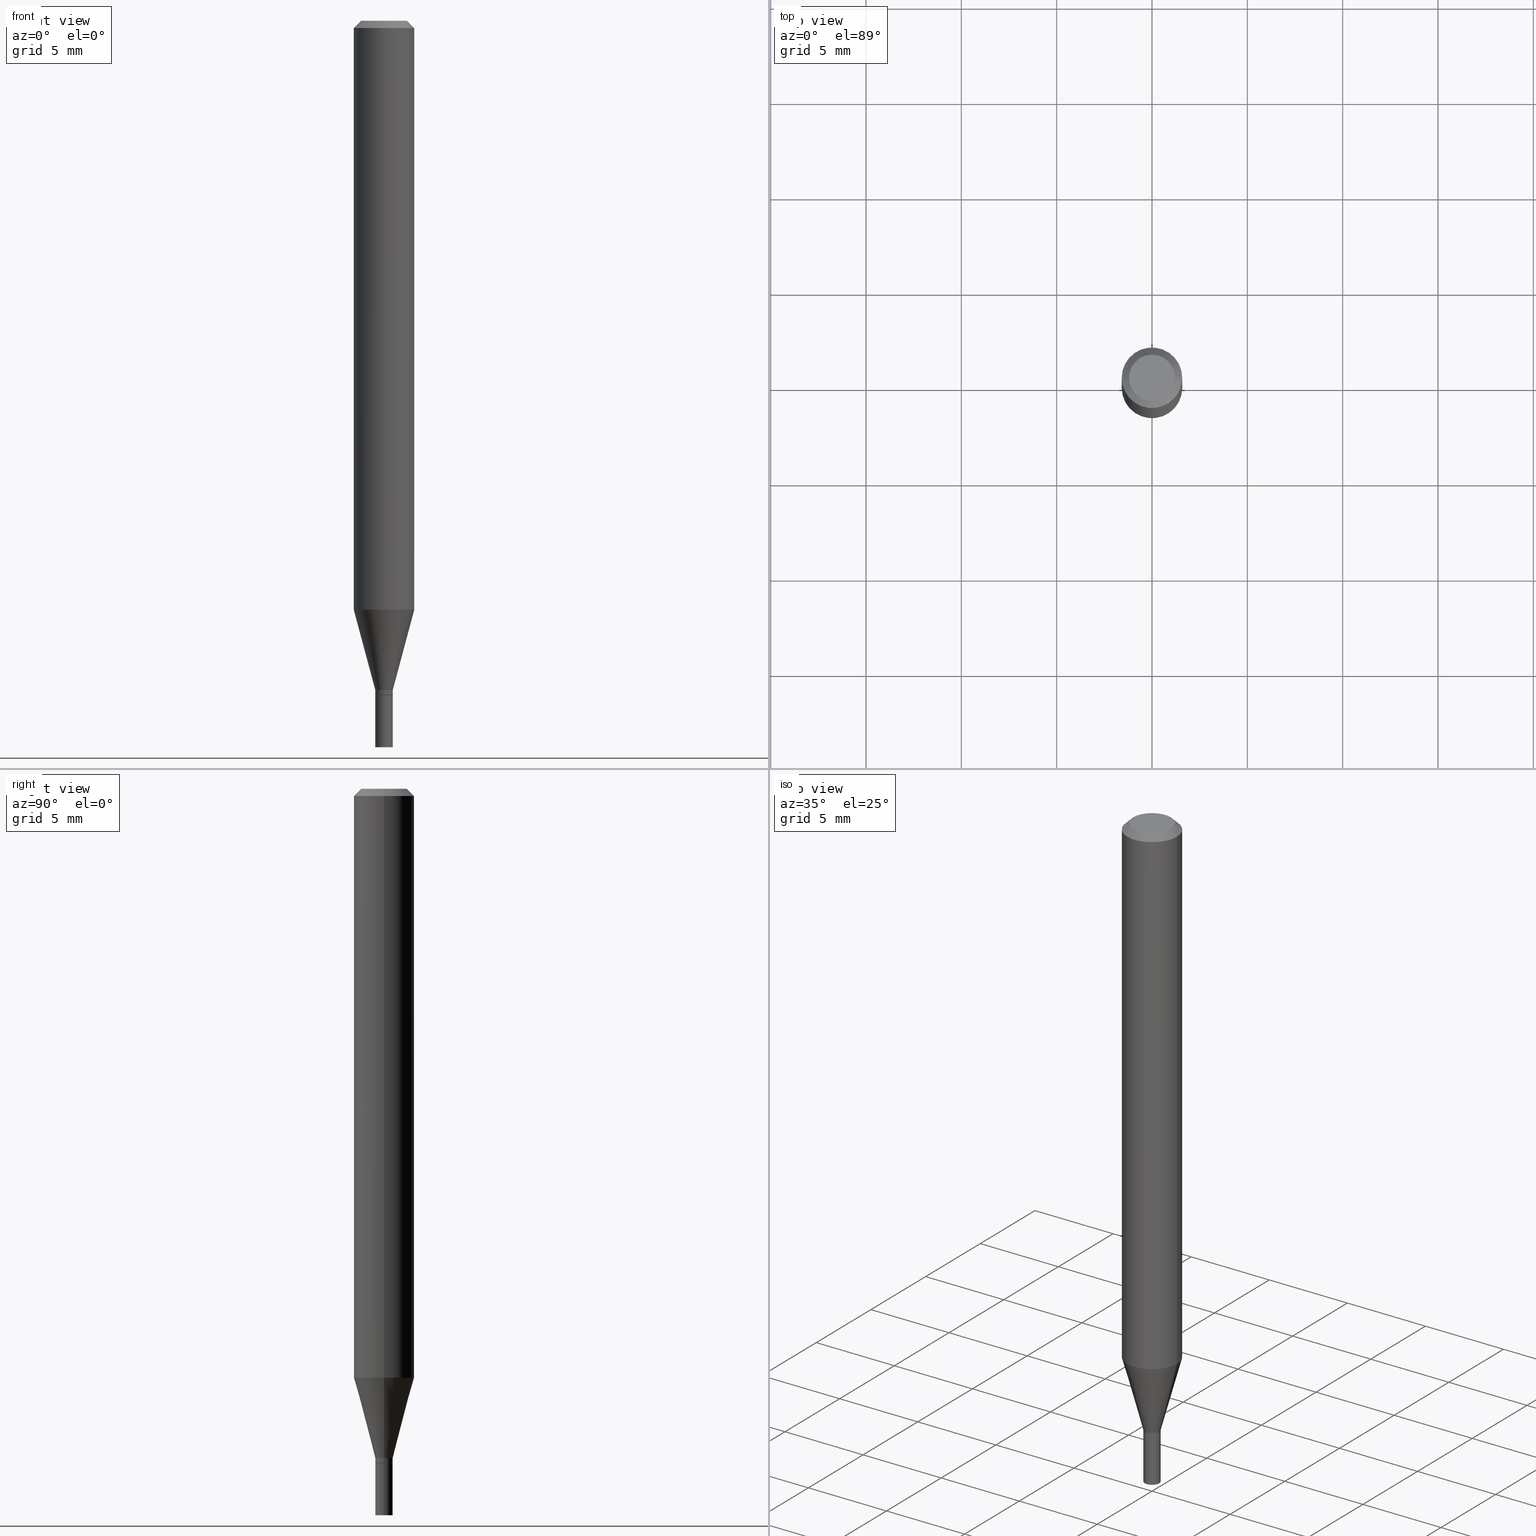
[diagram: canonical four-view strip — front | top / right | iso, engineering-drawing reading convention]
A machine part, canonical four-view strip (front | top / right | iso — engineering-drawing reading convention). The complete STEP part file that produces these views, byte-faithful:
ISO-10303-21;
HEADER;
FILE_DESCRIPTION (( 'STEP AP203' ),
    '1' );
FILE_NAME ('00545.STEP',
    '2024-03-19T21:37:30',
    ( '' ),
    ( '' ),
    'SwSTEP 2.0',
    'SolidWorks 2023',
    '' );
FILE_SCHEMA (( 'CONFIG_CONTROL_DESIGN' ));
ENDSEC;

DATA;
#1 = PRODUCT ( '00545', '00545', '', ( #197 ) ) ;
#2 = ORIENTED_EDGE ( 'NONE', *, *, #146, .T. ) ;
#3 = DIRECTION ( 'NONE',  ( -2.445468806185136597E-29, 3.491481338843145583E-15, 1.000000000000000000 ) ) ;
#4 = ORIENTED_EDGE ( 'NONE', *, *, #304, .F. ) ;
#5 = CARTESIAN_POINT ( 'NONE',  ( 3.668203209277705088E-31, -5.237222008264718399E-17, -0.01499999999999999944 ) ) ;
#6 = ORIENTED_EDGE ( 'NONE', *, *, #382, .T. ) ;
#7 = CARTESIAN_POINT ( 'NONE',  ( -0.06250000000000001388, -3.801285834545430586E-15, -1.215923739063185183 ) ) ;
#8 = EDGE_CURVE ( 'NONE', #48, #260, #223, .T. ) ;
#9 = EDGE_LOOP ( 'NONE', ( #79, #410, #4, #213 ) ) ;
#10 = DIRECTION ( 'NONE',  ( 1.000000000000000000, -6.982962677686250144E-15, 0.000000000000000000 ) ) ;
#11 = VERTEX_POINT ( 'NONE', #122 ) ;
#12 = DATE_AND_TIME ( #279, #20 ) ;
#13 = CIRCLE ( 'NONE', #464, 0.06250000000000000000 ) ;
#14 = ORIENTED_EDGE ( 'NONE', *, *, #37, .F. ) ;
#15 = ADVANCED_FACE ( 'NONE', ( #408 ), #354, .T. ) ;
#16 = DIRECTION ( 'NONE',  ( -2.445468806185136597E-29, 3.491481338843145583E-15, 1.000000000000000000 ) ) ;
#17 = DIRECTION ( 'NONE',  ( -2.445468806185136597E-29, 3.491481338843145583E-15, 1.000000000000000000 ) ) ;
#18 = CALENDAR_DATE ( 2024, 19, 3 ) ;
#19 = EDGE_CURVE ( 'NONE', #185, #69, #414, .T. ) ;
#20 = LOCAL_TIME ( 17, 37, 30.00000000000000000, #347 ) ;
#21 = DIRECTION ( 'NONE',  ( 1.000000000000000000, -6.982962677686250144E-15, 0.000000000000000000 ) ) ;
#22 = AXIS2_PLACEMENT_3D ( 'NONE', #340, #16, #246 ) ;
#23 = AXIS2_PLACEMENT_3D ( 'NONE', #82, #377, #265 ) ;
#24 = AXIS2_PLACEMENT_3D ( 'NONE', #321, #3, #428 ) ;
#25 = PERSON_AND_ORGANIZATION ( #252, #50 ) ;
#26 = DIRECTION ( 'NONE',  ( 1.000000000000000000, -6.982962677686265922E-15, 4.876176775795935793E-29 ) ) ;
#27 = DIRECTION ( 'NONE',  ( -2.438088387897960049E-29, 3.491481338843145188E-15, 1.000000000000000000 ) ) ;
#28 = PERSON_AND_ORGANIZATION ( #252, #50 ) ;
#29 = DIRECTION ( 'NONE',  ( 2.445468806185136597E-29, -3.491481338843145583E-15, -1.000000000000000000 ) ) ;
#30 = APPROVAL_PERSON_ORGANIZATION ( #204, #71, #64 ) ;
#31 = VECTOR ( 'NONE', #277, 39.37007874015748143 ) ;
#32 = CARTESIAN_POINT ( 'NONE',  ( 0.06250000000000000000, -4.811533449433679005E-16, -0.01499999999999999944 ) ) ;
#33 = EDGE_CURVE ( 'NONE', #404, #441, #369, .T. ) ;
#34 = ORIENTED_EDGE ( 'NONE', *, *, #365, .T. ) ;
#35 = CIRCLE ( 'NONE', #249, 0.06250000000000000000 ) ;
#36 = DIRECTION ( 'NONE',  ( 1.000000000000000000, -6.982962677686250144E-15, 0.000000000000000000 ) ) ;
#37 = EDGE_CURVE ( 'NONE', #326, #364, #225, .T. ) ;
#38 = EDGE_LOOP ( 'NONE', ( #255, #113, #34, #400 ) ) ;
#39 = CYLINDRICAL_SURFACE ( 'NONE', #193, 0.06250000000000000000 ) ;
#40 = ORIENTED_EDGE ( 'NONE', *, *, #358, .T. ) ;
#41 = APPROVAL ( #134, 'UNSPECIFIED' ) ;
#42 = CARTESIAN_POINT ( 'NONE',  ( 3.404092578209710223E-29, -4.860142023669658418E-15, -1.392000000000000126 ) ) ;
#43 = CIRCLE ( 'NONE', #106, 0.01799999999999991884 ) ;
#44 = ORIENTED_EDGE ( 'NONE', *, *, #210, .F. ) ;
#45 = DIRECTION ( 'NONE',  ( 1.000000000000000000, -6.982962677686279332E-15, 0.000000000000000000 ) ) ;
#46 = ORIENTED_EDGE ( 'NONE', *, *, #447, .F. ) ;
#47 = EDGE_CURVE ( 'NONE', #437, #48, #43, .T. ) ;
#48 = VERTEX_POINT ( 'NONE', #118 ) ;
#49 = FACE_OUTER_BOUND ( 'NONE', #328, .T. ) ;
#50 = ORGANIZATION ( 'UNSPECIFIED', 'UNSPECIFIED', '' ) ;
#51 = AXIS2_PLACEMENT_3D ( 'NONE', #264, #217, #366 ) ;
#52 = CARTESIAN_POINT ( 'NONE',  ( 1.278896122067429216E-44, -1.825924719719875646E-30, -5.229656247639779395E-16 ) ) ;
#53 = DIRECTION ( 'NONE',  ( 1.000000000000000000, -6.982962677686256455E-15, 0.000000000000000000 ) ) ;
#54 = ORIENTED_EDGE ( 'NONE', *, *, #37, .T. ) ;
#55 = COORDINATED_UNIVERSAL_TIME_OFFSET ( 5, 0, .BEHIND. ) ;
#56 = DIRECTION ( 'NONE',  ( -2.445468806185136597E-29, 3.491481338843145583E-15, 1.000000000000000000 ) ) ;
#57 = CARTESIAN_POINT ( 'NONE',  ( 3.402869843806617422E-29, -4.858396283000238492E-15, -1.391500000000000181 ) ) ;
#58 = CIRCLE ( 'NONE', #258, 0.01799999999999999864 ) ;
#59 = CALENDAR_DATE ( 2024, 19, 3 ) ;
#60 = CARTESIAN_POINT ( 'NONE',  ( 0.000000000000000000, 0.000000000000000000, 0.000000000000000000 ) ) ;
#61 = DATE_TIME_ROLE ( 'classification_date' ) ;
#62 = ADVANCED_FACE ( 'NONE', ( #90 ), #191, .F. ) ;
#63 = DIRECTION ( 'NONE',  ( -1.000000000000000000, 6.982962677686265922E-15, -4.876176775795935793E-29 ) ) ;
#64 = APPROVAL_ROLE ( '' ) ;
#65 = DIRECTION ( 'NONE',  ( -1.000000000000000000, 6.982962677686266711E-15, 0.000000000000000000 ) ) ;
#66 = AXIS2_PLACEMENT_3D ( 'NONE', #87, #162, #381 ) ;
#67 =( GEOMETRIC_REPRESENTATION_CONTEXT ( 3 ) GLOBAL_UNCERTAINTY_ASSIGNED_CONTEXT ( ( #457 ) ) GLOBAL_UNIT_ASSIGNED_CONTEXT ( ( #412, #339, #227 ) ) REPRESENTATION_CONTEXT ( 'NONE', 'WORKASPACE' ) );
#68 = PERSON_AND_ORGANIZATION ( #252, #50 ) ;
#69 = VERTEX_POINT ( 'NONE', #337 ) ;
#70 = EDGE_CURVE ( 'NONE', #364, #69, #143, .T. ) ;
#71 = APPROVAL ( #386, 'UNSPECIFIED' ) ;
#72 = EDGE_LOOP ( 'NONE', ( #367, #375, #216, #431 ) ) ;
#73 = LOCAL_TIME ( 17, 37, 30.00000000000000000, #55 ) ;
#74 = DIRECTION ( 'NONE',  ( -2.445468806185136597E-29, 3.491481338843145583E-15, 1.000000000000000000 ) ) ;
#75 = EDGE_LOOP ( 'NONE', ( #439, #301, #155, #370 ) ) ;
#76 = FACE_OUTER_BOUND ( 'NONE', #303, .T. ) ;
#77 = VERTEX_POINT ( 'NONE', #310 ) ;
#78 = CARTESIAN_POINT ( 'NONE',  ( -0.01799999999999999864, -4.920784323530369756E-15, -1.500000000000000222 ) ) ;
#79 = ORIENTED_EDGE ( 'NONE', *, *, #226, .T. ) ;
#80 = DIRECTION ( 'NONE',  ( 1.000000000000000000, -6.982962677686266711E-15, 0.000000000000000000 ) ) ;
#81 = VECTOR ( 'NONE', #393, 39.37007874015748143 ) ;
#82 = CARTESIAN_POINT ( 'NONE',  ( 1.256933281983868125E-16, 0.01799999999999513794, -1.392000000000000126 ) ) ;
#83 = CARTESIAN_POINT ( 'NONE',  ( 0.000000000000000000, 0.000000000000000000, 0.000000000000000000 ) ) ;
#84 = ADVANCED_FACE ( 'NONE', ( #451 ), #131, .F. ) ;
#85 = DIRECTION ( 'NONE',  ( 0.7071067811865642261, -2.468850131082431399E-15, 0.7071067811865309194 ) ) ;
#86 = DIRECTION ( 'NONE',  ( 1.000000000000000000, -6.982962677686265922E-15, 4.876176775795935793E-29 ) ) ;
#87 = CARTESIAN_POINT ( 'NONE',  ( 3.379637890147859239E-29, -4.825227210281227557E-15, -1.382000000000000117 ) ) ;
#88 = LOCAL_TIME ( 17, 37, 30.00000000000000000, #139 ) ;
#89 = AXIS2_PLACEMENT_3D ( 'NONE', #158, #123, #86 ) ;
#90 = FACE_OUTER_BOUND ( 'NONE', #164, .T. ) ;
#91 = PERSON_AND_ORGANIZATION ( #252, #50 ) ;
#92 = CARTESIAN_POINT ( 'NONE',  ( -0.06250000000000000000, 4.440892098500626162E-16, -3.074334431409316114E-30 ) ) ;
#93 = ADVANCED_FACE ( 'NONE', ( #244 ), #346, .T. ) ;
#94 = CYLINDRICAL_SURFACE ( 'NONE', #232, 0.01799999999999999864 ) ;
#95 = APPROVAL_ROLE ( '' ) ;
#96 = APPLICATION_CONTEXT ( 'configuration controlled 3d designs of mechanical parts and assemblies' ) ;
#97 = DIRECTION ( 'NONE',  ( 2.438088387897960049E-29, -3.491481338843145188E-15, -1.000000000000000000 ) ) ;
#98 = AXIS2_PLACEMENT_3D ( 'NONE', #372, #237, #53 ) ;
#99 = PERSON_AND_ORGANIZATION_ROLE ( 'creator' ) ;
#100 = ADVANCED_FACE ( 'NONE', ( #101 ), #120, .T. ) ;
#101 = FACE_OUTER_BOUND ( 'NONE', #75, .T. ) ;
#102 = DATE_AND_TIME ( #389, #360 ) ;
#103 = DIRECTION ( 'NONE',  ( -2.445468806185136877E-29, 3.491481338843145188E-15, 1.000000000000000000 ) ) ;
#104 = CARTESIAN_POINT ( 'NONE',  ( -0.06250000000000000000, -1.704784422389007524E-15, -0.01499999999999999944 ) ) ;
#105 = EDGE_LOOP ( 'NONE', ( #432, #196, #434, #262 ) ) ;
#106 = AXIS2_PLACEMENT_3D ( 'NONE', #342, #17, #449 ) ;
#107 = ORIENTED_EDGE ( 'NONE', *, *, #226, .F. ) ;
#108 = ORIENTED_EDGE ( 'NONE', *, *, #8, .T. ) ;
#109 = EDGE_LOOP ( 'NONE', ( #402, #157, #361, #331 ) ) ;
#110 = CIRCLE ( 'NONE', #430, 0.01749999999999999820 ) ;
#111 = DIRECTION ( 'NONE',  ( 1.000000000000000000, -6.982962677686265922E-15, 4.876176775795935232E-29 ) ) ;
#112 = ADVANCED_FACE ( 'NONE', ( #137 ), #171, .F. ) ;
#113 = ORIENTED_EDGE ( 'NONE', *, *, #181, .T. ) ;
#114 = CARTESIAN_POINT ( 'NONE',  ( 3.668203209277705088E-31, -5.237222008264718399E-17, -0.01499999999999999944 ) ) ;
#115 = DIRECTION ( 'NONE',  ( -0.2588190451025211836, 5.211531920934547886E-15, 0.9659258262890679791 ) ) ;
#116 = DESIGN_CONTEXT ( 'detailed design', #190, 'design' ) ;
#117 = DIRECTION ( 'NONE',  ( -2.445468806185136877E-29, 3.491481338843145188E-15, 1.000000000000000000 ) ) ;
#118 = CARTESIAN_POINT ( 'NONE',  ( -0.01799999999999991884, -4.249307676194920787E-15, -1.382000000000000117 ) ) ;
#119 = PRODUCT_DEFINITION_SHAPE ( 'NONE', 'NONE',  #247 ) ;
#120 = CONICAL_SURFACE ( 'NONE', #178, 0.01799999999999991884, 0.2617993877991499074 ) ;
#121 = DIRECTION ( 'NONE',  ( -2.445468806185136597E-29, 3.491481338843145583E-15, 1.000000000000000000 ) ) ;
#122 = CARTESIAN_POINT ( 'NONE',  ( 0.06250000000000001388, -4.681810211750884871E-15, -1.215923739063185183 ) ) ;
#123 = DIRECTION ( 'NONE',  ( -2.438088387897960049E-29, 3.491481338843145188E-15, 1.000000000000000000 ) ) ;
#124 = VERTEX_POINT ( 'NONE', #241 ) ;
#125 = DIRECTION ( 'NONE',  ( 2.445468806185136597E-29, -3.491481338843145583E-15, -1.000000000000000000 ) ) ;
#126 = ORIENTED_EDGE ( 'NONE', *, *, #195, .T. ) ;
#127 = LOCAL_TIME ( 17, 37, 30.00000000000000000, #239 ) ;
#128 = VECTOR ( 'NONE', #85, 39.37007874015748143 ) ;
#129 = APPROVAL ( #453, 'UNSPECIFIED' ) ;
#130 = AXIS2_PLACEMENT_3D ( 'NONE', #383, #161, #336 ) ;
#131 = PLANE ( 'NONE',  #287 ) ;
#132 = CARTESIAN_POINT ( 'NONE',  ( 3.668203209277705088E-31, -5.237222008264718399E-17, -0.01499999999999999944 ) ) ;
#133 = CARTESIAN_POINT ( 'NONE',  ( 0.01799999999999991884, -4.950920538479579759E-15, -1.382000000000000117 ) ) ;
#134 = APPROVAL_STATUS ( 'not_yet_approved' ) ;
#135 = DIRECTION ( 'NONE',  ( -2.445468806185136597E-29, 3.491481338843145583E-15, 1.000000000000000000 ) ) ;
#136 = EDGE_CURVE ( 'NONE', #260, #295, #458, .T. ) ;
#137 = FACE_OUTER_BOUND ( 'NONE', #177, .T. ) ;
#138 = VECTOR ( 'NONE', #208, 39.37007874015748143 ) ;
#139 = COORDINATED_UNIVERSAL_TIME_OFFSET ( 5, 0, .BEHIND. ) ;
#140 = CARTESIAN_POINT ( 'NONE',  ( 3.576687321579069994E-29, -5.368277968210015545E-15, -1.500000000000000222 ) ) ;
#141 = DIRECTION ( 'NONE',  ( -2.445468806185136597E-29, 3.491481338843145583E-15, 1.000000000000000000 ) ) ;
#142 = EDGE_CURVE ( 'NONE', #257, #77, #283, .T. ) ;
#143 = CIRCLE ( 'NONE', #22, 0.01799999999999992231 ) ;
#144 = AXIS2_PLACEMENT_3D ( 'NONE', #435, #267, #111 ) ;
#145 = ORIENTED_EDGE ( 'NONE', *, *, #200, .F. ) ;
#146 = EDGE_CURVE ( 'NONE', #257, #462, #289, .T. ) ;
#147 = ORIENTED_EDGE ( 'NONE', *, *, #47, .F. ) ;
#148 = ADVANCED_FACE ( 'NONE', ( #276 ), #94, .T. ) ;
#149 = CARTESIAN_POINT ( 'NONE',  ( 3.404092578209710223E-29, -4.860142023669658418E-15, -1.392000000000000126 ) ) ;
#150 = EDGE_LOOP ( 'NONE', ( #107, #292 ) ) ;
#151 = CYLINDRICAL_SURFACE ( 'NONE', #209, 0.01799999999999999864 ) ;
#152 = CC_DESIGN_DATE_AND_TIME_ASSIGNMENT ( #102, #61, ( #323 ) ) ;
#153 = ORIENTED_EDGE ( 'NONE', *, *, #290, .T. ) ;
#154 = CARTESIAN_POINT ( 'NONE',  ( -0.06250000000000000000, 3.840629472727444916E-16, -0.01499999999999999944 ) ) ;
#155 = ORIENTED_EDGE ( 'NONE', *, *, #243, .T. ) ;
#156 = FACE_OUTER_BOUND ( 'NONE', #72, .T. ) ;
#157 = ORIENTED_EDGE ( 'NONE', *, *, #195, .F. ) ;
#158 = CARTESIAN_POINT ( 'NONE',  ( 3.404092578209710223E-29, -4.860142023669658418E-15, -1.392000000000000126 ) ) ;
#159 = AXIS2_PLACEMENT_3D ( 'NONE', #456, #135, #21 ) ;
#160 = EDGE_LOOP ( 'NONE', ( #14, #194, #251, #446 ) ) ;
#161 = DIRECTION ( 'NONE',  ( 0.000000000000000000, 0.000000000000000000, 1.000000000000000000 ) ) ;
#162 = DIRECTION ( 'NONE',  ( -2.445468806185136597E-29, 3.491481338843145583E-15, 1.000000000000000000 ) ) ;
#163 = CC_DESIGN_PERSON_AND_ORGANIZATION_ASSIGNMENT ( #91, #421, ( #247 ) ) ;
#164 = EDGE_LOOP ( 'NONE', ( #268, #6 ) ) ;
#165 = DATE_TIME_ROLE ( 'creation_date' ) ;
#166 = PRODUCT_DEFINITION_FORMATION_WITH_SPECIFIED_SOURCE ( 'ANY', '', #1, .NOT_KNOWN. ) ;
#167 = VECTOR ( 'NONE', #390, 39.37007874015748143 ) ;
#168 = LINE ( 'NONE', #280, #214 ) ;
#169 = CARTESIAN_POINT ( 'NONE',  ( -0.04749999999999999362, 3.578768372314202124E-16, -5.229656247639803061E-16 ) ) ;
#170 = DIRECTION ( 'NONE',  ( 1.000000000000000000, -6.982962677686267499E-15, 4.852736867747366768E-29 ) ) ;
#171 = PLANE ( 'NONE',  #324 ) ;
#172 = DATE_AND_TIME ( #59, #88 ) ;
#173 = LINE ( 'NONE', #319, #138 ) ;
#174 = APPROVAL_DATE_TIME ( #172, #71 ) ;
#175 = CYLINDRICAL_SURFACE ( 'NONE', #24, 0.06250000000000000000 ) ;
#176 = CC_DESIGN_PERSON_AND_ORGANIZATION_ASSIGNMENT ( #28, #426, ( #323 ) ) ;
#177 = EDGE_LOOP ( 'NONE', ( #126, #291 ) ) ;
#178 = AXIS2_PLACEMENT_3D ( 'NONE', #315, #349, #203 ) ;
#179 = AXIS2_PLACEMENT_3D ( 'NONE', #114, #261, #80 ) ;
#180 = ORIENTED_EDGE ( 'NONE', *, *, #387, .F. ) ;
#181 = EDGE_CURVE ( 'NONE', #404, #124, #205, .T. ) ;
#182 = CARTESIAN_POINT ( 'NONE',  ( -0.01749999999999999820, -4.733147817737530757E-15, -1.392000000000000126 ) ) ;
#183 = ORIENTED_EDGE ( 'NONE', *, *, #136, .F. ) ;
#184 = CARTESIAN_POINT ( 'NONE',  ( 0.01799999999999999864, -4.985835351868011408E-15, -1.392000000000000126 ) ) ;
#185 = VERTEX_POINT ( 'NONE', #388 ) ;
#186 = CARTESIAN_POINT ( 'NONE',  ( -0.01799999999999991884, 1.278976924368174568E-16, -8.854083162458790652E-31 ) ) ;
#187 = ORIENTED_EDGE ( 'NONE', *, *, #47, .T. ) ;
#188 = DIRECTION ( 'NONE',  ( -2.445468806185136597E-29, 3.491481338843145583E-15, 1.000000000000000000 ) ) ;
#189 = DIRECTION ( 'NONE',  ( -2.445468806185136597E-29, 3.491481338843145583E-15, 1.000000000000000000 ) ) ;
#190 = APPLICATION_CONTEXT ( 'configuration controlled 3d designs of mechanical parts and assemblies' ) ;
#191 = PLANE ( 'NONE',  #23 ) ;
#192 =( LENGTH_UNIT ( ) NAMED_UNIT ( * ) SI_UNIT ( $, .METRE. ) );
#193 = AXIS2_PLACEMENT_3D ( 'NONE', #83, #300, #302 ) ;
#194 = ORIENTED_EDGE ( 'NONE', *, *, #398, .T. ) ;
#195 = EDGE_CURVE ( 'NONE', #441, #404, #415, .T. ) ;
#196 = ORIENTED_EDGE ( 'NONE', *, *, #136, .T. ) ;
#197 = MECHANICAL_CONTEXT ( 'NONE', #96, 'mechanical' ) ;
#198 = DIRECTION ( 'NONE',  ( -2.445468806185136597E-29, 3.491481338843145583E-15, 1.000000000000000000 ) ) ;
#199 = DATE_AND_TIME ( #18, #73 ) ;
#200 = EDGE_CURVE ( 'NONE', #185, #326, #110, .T. ) ;
#201 = CIRCLE ( 'NONE', #221, 0.01799999999999992231 ) ;
#202 = CARTESIAN_POINT ( 'NONE',  ( 3.316907271900976096E-16, 0.04749999999999999362, -4.273281759770383169E-16 ) ) ;
#203 = DIRECTION ( 'NONE',  ( 1.000000000000000000, -6.982962677686256455E-15, 0.000000000000000000 ) ) ;
#204 = PERSON_AND_ORGANIZATION ( #252, #50 ) ;
#205 = LINE ( 'NONE', #32, #81 ) ;
#206 = PERSON_AND_ORGANIZATION ( #252, #50 ) ;
#207 = ADVANCED_BREP_SHAPE_REPRESENTATION ( '00545', ( #392, #231, #130 ), #67 ) ;
#208 = DIRECTION ( 'NONE',  ( -2.445468806185136877E-29, 3.491481338843145188E-15, 1.000000000000000000 ) ) ;
#209 = AXIS2_PLACEMENT_3D ( 'NONE', #406, #297, #438 ) ;
#210 = EDGE_CURVE ( 'NONE', #69, #364, #201, .T. ) ;
#211 = ORIENTED_EDGE ( 'NONE', *, *, #19, .F. ) ;
#212 = EDGE_CURVE ( 'NONE', #462, #411, #173, .T. ) ;
#213 = ORIENTED_EDGE ( 'NONE', *, *, #212, .F. ) ;
#214 = VECTOR ( 'NONE', #454, 39.37007874015748143 ) ;
#215 = CARTESIAN_POINT ( 'NONE',  ( 2.973503574579014958E-29, -4.245375044395493202E-15, -1.215923739063185183 ) ) ;
#216 = ORIENTED_EDGE ( 'NONE', *, *, #447, .T. ) ;
#217 = DIRECTION ( 'NONE',  ( -2.445468806185136597E-29, 3.491481338843145583E-15, 1.000000000000000000 ) ) ;
#218 = CARTESIAN_POINT ( 'NONE',  ( -0.01799999999999992231, -4.730498590563419556E-15, -1.391500000000000181 ) ) ;
#219 = EDGE_LOOP ( 'NONE', ( #183, #153, #357, #272 ) ) ;
#220 = VECTOR ( 'NONE', #229, 39.37007874015748143 ) ;
#221 = AXIS2_PLACEMENT_3D ( 'NONE', #57, #351, #422 ) ;
#222 = CARTESIAN_POINT ( 'NONE',  ( 2.973503574579014958E-29, -4.245375044395493202E-15, -1.215923739063185183 ) ) ;
#223 = LINE ( 'NONE', #269, #273 ) ;
#224 = DIRECTION ( 'NONE',  ( -0.7071067811865598962, 2.468850131082386434E-15, -0.7071067811865351382 ) ) ;
#225 = LINE ( 'NONE', #309, #220 ) ;
#226 = EDGE_CURVE ( 'NONE', #462, #257, #407, .T. ) ;
#227 =( NAMED_UNIT ( * ) SI_UNIT ( $, .STERADIAN. ) SOLID_ANGLE_UNIT ( ) );
#228 = ADVANCED_FACE ( 'NONE', ( #348 ), #444, .T. ) ;
#229 = DIRECTION ( 'NONE',  ( -0.7071067811865642261, 7.493145998870414114E-15, 0.7071067811865309194 ) ) ;
#230 = CC_DESIGN_SECURITY_CLASSIFICATION ( #323, ( #166 ) ) ;
#231 = MANIFOLD_SOLID_BREP ( 'Body-Move/Copy2[2]', #294 ) ;
#232 = AXIS2_PLACEMENT_3D ( 'NONE', #60, #417, #235 ) ;
#233 = ORIENTED_EDGE ( 'NONE', *, *, #382, .F. ) ;
#234 = LENGTH_MEASURE_WITH_UNIT ( LENGTH_MEASURE( 0.02539999999999999897 ), #192 );
#235 = DIRECTION ( 'NONE',  ( 1.000000000000000000, -6.982962677686266711E-15, 4.876176775795935232E-29 ) ) ;
#236 = EDGE_CURVE ( 'NONE', #11, #124, #168, .T. ) ;
#237 = DIRECTION ( 'NONE',  ( -2.445468806185136597E-29, 3.491481338843145583E-15, 1.000000000000000000 ) ) ;
#238 = CARTESIAN_POINT ( 'NONE',  ( 3.404092578209710223E-29, -4.860142023669658418E-15, -1.392000000000000126 ) ) ;
#239 = COORDINATED_UNIVERSAL_TIME_OFFSET ( 5, 0, .BEHIND. ) ;
#240 = AXIS2_PLACEMENT_3D ( 'NONE', #334, #461, #10 ) ;
#241 = CARTESIAN_POINT ( 'NONE',  ( 0.06250000000000000000, -4.888073874380388472E-16, -0.01499999999999999944 ) ) ;
#242 = COORDINATED_UNIVERSAL_TIME_OFFSET ( 5, 0, .BEHIND. ) ;
#243 = EDGE_CURVE ( 'NONE', #437, #11, #312, .T. ) ;
#244 = FACE_OUTER_BOUND ( 'NONE', #38, .T. ) ;
#245 = CALENDAR_DATE ( 2024, 19, 3 ) ;
#246 = DIRECTION ( 'NONE',  ( 1.000000000000000000, -6.982962677686255667E-15, 0.000000000000000000 ) ) ;
#247 = PRODUCT_DEFINITION ( 'UNKNOWN', '', #166, #116 ) ;
#248 = DIRECTION ( 'NONE',  ( 1.000000000000000000, -6.982962677686270655E-15, 0.000000000000000000 ) ) ;
#249 = AXIS2_PLACEMENT_3D ( 'NONE', #215, #286, #248 ) ;
#250 = PRODUCT_RELATED_PRODUCT_CATEGORY ( 'detail', '', ( #1 ) ) ;
#251 = ORIENTED_EDGE ( 'NONE', *, *, #19, .T. ) ;
#252 = PERSON ( 'UNSPECIFIED', 'UNSPECIFIED', 'UNSPECIFIED', ('UNSPECIFIED'), ('UNSPECIFIED'), ('UNSPECIFIED') ) ;
#253 = ORIENTED_EDGE ( 'NONE', *, *, #142, .F. ) ;
#254 = ADVANCED_FACE ( 'NONE', ( #156 ), #443, .T. ) ;
#255 = ORIENTED_EDGE ( 'NONE', *, *, #33, .F. ) ;
#256 = APPROVAL_PERSON_ORGANIZATION ( #343, #41, #450 ) ;
#257 = VERTEX_POINT ( 'NONE', #78 ) ;
#258 = AXIS2_PLACEMENT_3D ( 'NONE', #42, #188, #403 ) ;
#259 = CARTESIAN_POINT ( 'NONE',  ( 3.404092578209710223E-29, -4.860142023669658418E-15, -1.392000000000000126 ) ) ;
#260 = VERTEX_POINT ( 'NONE', #7 ) ;
#261 = DIRECTION ( 'NONE',  ( -2.445468806185136597E-29, 3.491481338843145583E-15, 1.000000000000000000 ) ) ;
#262 = ORIENTED_EDGE ( 'NONE', *, *, #236, .F. ) ;
#263 = CC_DESIGN_PERSON_AND_ORGANIZATION_ASSIGNMENT ( #206, #350, ( #166 ) ) ;
#264 = CARTESIAN_POINT ( 'NONE',  ( 0.000000000000000000, 0.000000000000000000, 0.000000000000000000 ) ) ;
#265 = DIRECTION ( 'NONE',  ( -1.000000000000000000, 6.982962677686265922E-15, -4.876176775795935793E-29 ) ) ;
#266 = AXIS2_PLACEMENT_3D ( 'NONE', #427, #384, #170 ) ;
#267 = DIRECTION ( 'NONE',  ( -2.445468806185136597E-29, 3.491481338843145583E-15, 1.000000000000000000 ) ) ;
#268 = ORIENTED_EDGE ( 'NONE', *, *, #304, .T. ) ;
#269 = CARTESIAN_POINT ( 'NONE',  ( -0.01799999999999991884, -4.697329517844410199E-15, -1.382000000000000117 ) ) ;
#270 = DIMENSIONAL_EXPONENTS ( 1.000000000000000000, 0.000000000000000000, 0.000000000000000000, 0.000000000000000000, 0.000000000000000000, 0.000000000000000000, 0.000000000000000000 ) ;
#271 = APPLICATION_PROTOCOL_DEFINITION ( 'international standard', 'config_control_design', 1994, #190 ) ;
#272 = ORIENTED_EDGE ( 'NONE', *, *, #429, .F. ) ;
#273 = VECTOR ( 'NONE', #115, 39.37007874015748854 ) ;
#274 = APPROVAL_DATE_TIME ( #12, #41 ) ;
#275 = CIRCLE ( 'NONE', #325, 0.01749999999999999820 ) ;
#276 = FACE_OUTER_BOUND ( 'NONE', #9, .T. ) ;
#277 = DIRECTION ( 'NONE',  ( -2.445468806185136877E-29, 3.491481338843145188E-15, 1.000000000000000000 ) ) ;
#278 = DIRECTION ( 'NONE',  ( -2.445468806185136597E-29, 3.491481338843145583E-15, 1.000000000000000000 ) ) ;
#279 = CALENDAR_DATE ( 2024, 19, 3 ) ;
#280 = CARTESIAN_POINT ( 'NONE',  ( 0.06250000000000000000, -4.364351673553916694E-16, 3.047610484872459871E-30 ) ) ;
#281 = CC_DESIGN_APPROVAL ( #41, ( #247 ) ) ;
#282 = CIRCLE ( 'NONE', #399, 0.01799999999999999864 ) ;
#283 = LINE ( 'NONE', #356, #288 ) ;
#284 = ADVANCED_FACE ( 'NONE', ( #76 ), #394, .T. ) ;
#285 = CARTESIAN_POINT ( 'NONE',  ( 3.668203209277705088E-31, -5.237222008264718399E-17, -0.01499999999999999944 ) ) ;
#286 = DIRECTION ( 'NONE',  ( -2.445468806185136597E-29, 3.491481338843145583E-15, 1.000000000000000000 ) ) ;
#287 = AXIS2_PLACEMENT_3D ( 'NONE', #140, #27, #26 ) ;
#288 = VECTOR ( 'NONE', #103, 39.37007874015748143 ) ;
#289 = CIRCLE ( 'NONE', #305, 0.01799999999999999864 ) ;
#290 = EDGE_CURVE ( 'NONE', #260, #11, #13, .T. ) ;
#291 = ORIENTED_EDGE ( 'NONE', *, *, #33, .T. ) ;
#292 = ORIENTED_EDGE ( 'NONE', *, *, #146, .F. ) ;
#293 = FACE_OUTER_BOUND ( 'NONE', #335, .T. ) ;
#294 = CLOSED_SHELL ( 'NONE', ( #405, #284, #93, #322, #15, #100, #363, #442, #112, #466, #228, #254 ) ) ;
#295 = VERTEX_POINT ( 'NONE', #104 ) ;
#296 = AXIS2_PLACEMENT_3D ( 'NONE', #132, #125, #306 ) ;
#297 = DIRECTION ( 'NONE',  ( -2.445468806185136597E-29, 3.491481338843145583E-15, 1.000000000000000000 ) ) ;
#298 = CC_DESIGN_DATE_AND_TIME_ASSIGNMENT ( #199, #165, ( #247 ) ) ;
#299 = ORIENTED_EDGE ( 'NONE', *, *, #243, .F. ) ;
#300 = DIRECTION ( 'NONE',  ( -2.445468806185136597E-29, 3.491481338843145583E-15, 1.000000000000000000 ) ) ;
#301 = ORIENTED_EDGE ( 'NONE', *, *, #433, .T. ) ;
#302 = DIRECTION ( 'NONE',  ( 1.000000000000000000, -6.982962677686266711E-15, 4.876176775795935793E-29 ) ) ;
#303 = EDGE_LOOP ( 'NONE', ( #307, #54, #44, #211 ) ) ;
#304 = EDGE_CURVE ( 'NONE', #411, #77, #282, .T. ) ;
#305 = AXIS2_PLACEMENT_3D ( 'NONE', #460, #278, #425 ) ;
#306 = DIRECTION ( 'NONE',  ( -1.000000000000000000, 6.982962677686266711E-15, 0.000000000000000000 ) ) ;
#307 = ORIENTED_EDGE ( 'NONE', *, *, #200, .T. ) ;
#308 = CARTESIAN_POINT ( 'NONE',  ( 0.01799999999999991884, -4.950920538479579759E-15, -1.382000000000000117 ) ) ;
#309 = CARTESIAN_POINT ( 'NONE',  ( -0.01749999999999999820, -4.735797044911641169E-15, -1.392000000000000126 ) ) ;
#310 = CARTESIAN_POINT ( 'NONE',  ( -0.01799999999999999864, -4.920784323530369756E-15, -1.392000000000000126 ) ) ;
#311 = CIRCLE ( 'NONE', #98, 0.01799999999999991884 ) ;
#312 = LINE ( 'NONE', #133, #379 ) ;
#313 = FACE_OUTER_BOUND ( 'NONE', #109, .T. ) ;
#314 = CARTESIAN_POINT ( 'NONE',  ( 3.668203209277704895E-29, -5.237222008264718177E-15, -1.500000000000000222 ) ) ;
#315 = CARTESIAN_POINT ( 'NONE',  ( 3.379637890147859239E-29, -4.825227210281227557E-15, -1.382000000000000117 ) ) ;
#316 = EDGE_CURVE ( 'NONE', #441, #295, #395, .T. ) ;
#317 = APPROVAL_PERSON_ORGANIZATION ( #25, #129, #95 ) ;
#318 = CONICAL_SURFACE ( 'NONE', #296, 0.06250000000000000000, 0.7853981633974658205 ) ;
#319 = CARTESIAN_POINT ( 'NONE',  ( 0.01799999999999999864, -1.256933281983527929E-16, 8.777118196432682816E-31 ) ) ;
#320 = SECURITY_CLASSIFICATION_LEVEL ( 'unclassified' ) ;
#321 = CARTESIAN_POINT ( 'NONE',  ( 0.000000000000000000, 0.000000000000000000, 0.000000000000000000 ) ) ;
#322 = ADVANCED_FACE ( 'NONE', ( #409 ), #39, .T. ) ;
#323 = SECURITY_CLASSIFICATION ( '', '', #320 ) ;
#324 = AXIS2_PLACEMENT_3D ( 'NONE', #202, #97, #63 ) ;
#325 = AXIS2_PLACEMENT_3D ( 'NONE', #259, #74, #36 ) ;
#326 = VERTEX_POINT ( 'NONE', #182 ) ;
#327 = CARTESIAN_POINT ( 'NONE',  ( 0.04749999999999999362, -4.035134999187587991E-16, -5.229656247639753758E-16 ) ) ;
#328 = EDGE_LOOP ( 'NONE', ( #145, #396 ) ) ;
#329 = FACE_OUTER_BOUND ( 'NONE', #397, .T. ) ;
#330 = AXIS2_PLACEMENT_3D ( 'NONE', #52, #189, #333 ) ;
#331 = ORIENTED_EDGE ( 'NONE', *, *, #429, .T. ) ;
#332 = DIRECTION ( 'NONE',  ( 1.000000000000000000, -6.982962677686270655E-15, 0.000000000000000000 ) ) ;
#333 = DIRECTION ( 'NONE',  ( 1.000000000000000000, -6.982962677686267499E-15, 4.852736867747366768E-29 ) ) ;
#334 = CARTESIAN_POINT ( 'NONE',  ( 3.404092578209710223E-29, -4.860142023669658418E-15, -1.392000000000000126 ) ) ;
#335 = EDGE_LOOP ( 'NONE', ( #359, #40, #147, #46 ) ) ;
#336 = DIRECTION ( 'NONE',  ( 1.000000000000000000, 0.000000000000000000, 0.000000000000000000 ) ) ;
#337 = CARTESIAN_POINT ( 'NONE',  ( 0.01799999999999992231, -4.984089611198589115E-15, -1.391500000000000181 ) ) ;
#338 = AXIS2_PLACEMENT_3D ( 'NONE', #5, #141, #362 ) ;
#339 =( NAMED_UNIT ( * ) PLANE_ANGLE_UNIT ( ) SI_UNIT ( $, .RADIAN. ) );
#340 = CARTESIAN_POINT ( 'NONE',  ( 3.402869843806617422E-29, -4.858396283000238492E-15, -1.391500000000000181 ) ) ;
#341 = PLANE ( 'NONE',  #89 ) ;
#342 = CARTESIAN_POINT ( 'NONE',  ( 3.379637890147859239E-29, -4.825227210281227557E-15, -1.382000000000000117 ) ) ;
#343 = PERSON_AND_ORGANIZATION ( #252, #50 ) ;
#344 = CC_DESIGN_PERSON_AND_ORGANIZATION_ASSIGNMENT ( #68, #99, ( #166 ) ) ;
#345 = DIRECTION ( 'NONE',  ( 1.000000000000000000, -6.982962677686279332E-15, 0.000000000000000000 ) ) ;
#346 = CONICAL_SURFACE ( 'NONE', #463, 0.06250000000000000000, 0.7853981633974658205 ) ;
#347 = COORDINATED_UNIVERSAL_TIME_OFFSET ( 5, 0, .BEHIND. ) ;
#348 = FACE_OUTER_BOUND ( 'NONE', #160, .T. ) ;
#349 = DIRECTION ( 'NONE',  ( -2.445468806185136597E-29, 3.491481338843145583E-15, 1.000000000000000000 ) ) ;
#350 = PERSON_AND_ORGANIZATION_ROLE ( 'design_supplier' ) ;
#351 = DIRECTION ( 'NONE',  ( -2.445468806185136597E-29, 3.491481338843145583E-15, 1.000000000000000000 ) ) ;
#352 = SHAPE_DEFINITION_REPRESENTATION ( #119, #207 ) ;
#353 = CC_DESIGN_APPROVAL ( #129, ( #166 ) ) ;
#354 = CONICAL_SURFACE ( 'NONE', #66, 0.01799999999999991884, 0.2617993877991499074 ) ;
#355 = VECTOR ( 'NONE', #224, 39.37007874015748143 ) ;
#356 = CARTESIAN_POINT ( 'NONE',  ( -0.01799999999999999864, 1.278976924368180238E-16, -8.854083162458829188E-31 ) ) ;
#357 = ORIENTED_EDGE ( 'NONE', *, *, #236, .T. ) ;
#358 = EDGE_CURVE ( 'NONE', #364, #48, #374, .T. ) ;
#359 = ORIENTED_EDGE ( 'NONE', *, *, #210, .T. ) ;
#360 = LOCAL_TIME ( 17, 37, 30.00000000000000000, #242 ) ;
#361 = ORIENTED_EDGE ( 'NONE', *, *, #316, .T. ) ;
#362 = DIRECTION ( 'NONE',  ( 1.000000000000000000, -6.982962677686266711E-15, 0.000000000000000000 ) ) ;
#363 = ADVANCED_FACE ( 'NONE', ( #440 ), #175, .T. ) ;
#364 = VERTEX_POINT ( 'NONE', #218 ) ;
#365 = EDGE_CURVE ( 'NONE', #124, #295, #452, .T. ) ;
#366 = DIRECTION ( 'NONE',  ( 1.000000000000000000, -6.982962677686265922E-15, 4.876176775795935232E-29 ) ) ;
#367 = ORIENTED_EDGE ( 'NONE', *, *, #358, .F. ) ;
#368 = DIRECTION ( 'NONE',  ( -2.445468806185136597E-29, 3.491481338843145583E-15, 1.000000000000000000 ) ) ;
#369 = CIRCLE ( 'NONE', #330, 0.04749999999999999362 ) ;
#370 = ORIENTED_EDGE ( 'NONE', *, *, #290, .F. ) ;
#371 = AXIS2_PLACEMENT_3D ( 'NONE', #314, #198, #345 ) ;
#372 = CARTESIAN_POINT ( 'NONE',  ( 3.379637890147859239E-29, -4.825227210281227557E-15, -1.382000000000000117 ) ) ;
#373 = CARTESIAN_POINT ( 'NONE',  ( 0.01749999999999999820, -4.982343870529167612E-15, -1.392000000000000126 ) ) ;
#374 = LINE ( 'NONE', #186, #459 ) ;
#375 = ORIENTED_EDGE ( 'NONE', *, *, #70, .T. ) ;
#376 = CARTESIAN_POINT ( 'NONE',  ( 0.01799999999999991884, -1.256933281983522259E-16, 8.777118196432644280E-31 ) ) ;
#377 = DIRECTION ( 'NONE',  ( 2.438088387897960049E-29, -3.491481338843145188E-15, -1.000000000000000000 ) ) ;
#378 = CLOSED_SHELL ( 'NONE', ( #148, #84, #420, #62 ) ) ;
#379 = VECTOR ( 'NONE', #385, 39.37007874015748854 ) ;
#380 = LINE ( 'NONE', #376, #31 ) ;
#381 = DIRECTION ( 'NONE',  ( 1.000000000000000000, -6.982962677686256455E-15, 0.000000000000000000 ) ) ;
#382 = EDGE_CURVE ( 'NONE', #77, #411, #58, .T. ) ;
#383 = CARTESIAN_POINT ( 'NONE',  ( 0.000000000000000000, 0.000000000000000000, 0.000000000000000000 ) ) ;
#384 = DIRECTION ( 'NONE',  ( -2.445468806185136597E-29, 3.491481338843145583E-15, 1.000000000000000000 ) ) ;
#385 = DIRECTION ( 'NONE',  ( 0.2588190451025211836, 1.565188264969622559E-15, 0.9659258262890679791 ) ) ;
#386 = APPROVAL_STATUS ( 'not_yet_approved' ) ;
#387 = EDGE_CURVE ( 'NONE', #11, #260, #35, .T. ) ;
#388 = CARTESIAN_POINT ( 'NONE',  ( 0.01749999999999999820, -4.982343870529167612E-15, -1.392000000000000126 ) ) ;
#389 = CALENDAR_DATE ( 2024, 19, 3 ) ;
#390 = DIRECTION ( 'NONE',  ( -2.445468806185136877E-29, 3.491481338843145188E-15, 1.000000000000000000 ) ) ;
#391 = APPROVAL_DATE_TIME ( #424, #129 ) ;
#392 = MANIFOLD_SOLID_BREP ( 'Body-Move/Copy2[1]', #378 ) ;
#393 = DIRECTION ( 'NONE',  ( 0.7071067811865598962, -7.319954787623298644E-15, -0.7071067811865351382 ) ) ;
#394 = CONICAL_SURFACE ( 'NONE', #240, 0.01749999999999999820, 0.7853981633974718157 ) ;
#395 = LINE ( 'NONE', #154, #355 ) ;
#396 = ORIENTED_EDGE ( 'NONE', *, *, #398, .F. ) ;
#397 = EDGE_LOOP ( 'NONE', ( #253, #2, #445, #233 ) ) ;
#398 = EDGE_CURVE ( 'NONE', #326, #185, #275, .T. ) ;
#399 = AXIS2_PLACEMENT_3D ( 'NONE', #149, #121, #45 ) ;
#400 = ORIENTED_EDGE ( 'NONE', *, *, #316, .F. ) ;
#401 = CYLINDRICAL_SURFACE ( 'NONE', #51, 0.01799999999999991884 ) ;
#402 = ORIENTED_EDGE ( 'NONE', *, *, #181, .F. ) ;
#403 = DIRECTION ( 'NONE',  ( 1.000000000000000000, -6.982962677686279332E-15, 0.000000000000000000 ) ) ;
#404 = VERTEX_POINT ( 'NONE', #327 ) ;
#405 = ADVANCED_FACE ( 'NONE', ( #293 ), #401, .T. ) ;
#406 = CARTESIAN_POINT ( 'NONE',  ( 0.000000000000000000, 0.000000000000000000, 0.000000000000000000 ) ) ;
#407 = CIRCLE ( 'NONE', #371, 0.01799999999999999864 ) ;
#408 = FACE_OUTER_BOUND ( 'NONE', #465, .T. ) ;
#409 = FACE_OUTER_BOUND ( 'NONE', #105, .T. ) ;
#410 = ORIENTED_EDGE ( 'NONE', *, *, #142, .T. ) ;
#411 = VERTEX_POINT ( 'NONE', #184 ) ;
#412 =( CONVERSION_BASED_UNIT ( 'INCH', #234 ) LENGTH_UNIT ( ) NAMED_UNIT ( #270 ) );
#413 = CC_DESIGN_PERSON_AND_ORGANIZATION_ASSIGNMENT ( #455, #448, ( #1 ) ) ;
#414 = LINE ( 'NONE', #373, #128 ) ;
#415 = CIRCLE ( 'NONE', #266, 0.04749999999999999362 ) ;
#416 = CARTESIAN_POINT ( 'NONE',  ( 0.01799999999999999864, -5.362915336463071956E-15, -1.500000000000000222 ) ) ;
#417 = DIRECTION ( 'NONE',  ( -2.445468806185136597E-29, 3.491481338843145583E-15, 1.000000000000000000 ) ) ;
#418 = APPLICATION_PROTOCOL_DEFINITION ( 'international standard', 'config_control_design', 1994, #96 ) ;
#419 = DIRECTION ( 'NONE',  ( 1.000000000000000000, -6.982962677686250144E-15, 0.000000000000000000 ) ) ;
#420 = ADVANCED_FACE ( 'NONE', ( #329 ), #151, .T. ) ;
#421 = PERSON_AND_ORGANIZATION_ROLE ( 'creator' ) ;
#422 = DIRECTION ( 'NONE',  ( 1.000000000000000000, -6.982962677686255667E-15, 0.000000000000000000 ) ) ;
#423 = CC_DESIGN_APPROVAL ( #71, ( #323 ) ) ;
#424 = DATE_AND_TIME ( #245, #127 ) ;
#425 = DIRECTION ( 'NONE',  ( 1.000000000000000000, -6.982962677686279332E-15, 0.000000000000000000 ) ) ;
#426 = PERSON_AND_ORGANIZATION_ROLE ( 'classification_officer' ) ;
#427 = CARTESIAN_POINT ( 'NONE',  ( 1.278896122067429216E-44, -1.825924719719875646E-30, -5.229656247639779395E-16 ) ) ;
#428 = DIRECTION ( 'NONE',  ( 1.000000000000000000, -6.982962677686266711E-15, 4.876176775795935793E-29 ) ) ;
#429 = EDGE_CURVE ( 'NONE', #295, #124, #436, .T. ) ;
#430 = AXIS2_PLACEMENT_3D ( 'NONE', #238, #56, #419 ) ;
#431 = ORIENTED_EDGE ( 'NONE', *, *, #433, .F. ) ;
#432 = ORIENTED_EDGE ( 'NONE', *, *, #387, .T. ) ;
#433 = EDGE_CURVE ( 'NONE', #48, #437, #311, .T. ) ;
#434 = ORIENTED_EDGE ( 'NONE', *, *, #365, .F. ) ;
#435 = CARTESIAN_POINT ( 'NONE',  ( 0.000000000000000000, 0.000000000000000000, 0.000000000000000000 ) ) ;
#436 = CIRCLE ( 'NONE', #179, 0.06250000000000000000 ) ;
#437 = VERTEX_POINT ( 'NONE', #308 ) ;
#438 = DIRECTION ( 'NONE',  ( 1.000000000000000000, -6.982962677686266711E-15, 4.876176775795935232E-29 ) ) ;
#439 = ORIENTED_EDGE ( 'NONE', *, *, #8, .F. ) ;
#440 = FACE_OUTER_BOUND ( 'NONE', #219, .T. ) ;
#441 = VERTEX_POINT ( 'NONE', #169 ) ;
#442 = ADVANCED_FACE ( 'NONE', ( #313 ), #318, .T. ) ;
#443 = CYLINDRICAL_SURFACE ( 'NONE', #144, 0.01799999999999991884 ) ;
#444 = CONICAL_SURFACE ( 'NONE', #159, 0.01749999999999999820, 0.7853981633974718157 ) ;
#445 = ORIENTED_EDGE ( 'NONE', *, *, #212, .T. ) ;
#446 = ORIENTED_EDGE ( 'NONE', *, *, #70, .F. ) ;
#447 = EDGE_CURVE ( 'NONE', #69, #437, #380, .T. ) ;
#448 = PERSON_AND_ORGANIZATION_ROLE ( 'design_owner' ) ;
#449 = DIRECTION ( 'NONE',  ( 1.000000000000000000, -6.982962677686256455E-15, 0.000000000000000000 ) ) ;
#450 = APPROVAL_ROLE ( '' ) ;
#451 = FACE_OUTER_BOUND ( 'NONE', #150, .T. ) ;
#452 = CIRCLE ( 'NONE', #338, 0.06250000000000000000 ) ;
#453 = APPROVAL_STATUS ( 'not_yet_approved' ) ;
#454 = DIRECTION ( 'NONE',  ( -2.445468806185136877E-29, 3.491481338843145188E-15, 1.000000000000000000 ) ) ;
#455 = PERSON_AND_ORGANIZATION ( #252, #50 ) ;
#456 = CARTESIAN_POINT ( 'NONE',  ( 3.404092578209710223E-29, -4.860142023669658418E-15, -1.392000000000000126 ) ) ;
#457 = UNCERTAINTY_MEASURE_WITH_UNIT (LENGTH_MEASURE( 1.000000000000000082E-05 ), #412, 'distance_accuracy_value', 'NONE');
#458 = LINE ( 'NONE', #92, #167 ) ;
#459 = VECTOR ( 'NONE', #117, 39.37007874015748143 ) ;
#460 = CARTESIAN_POINT ( 'NONE',  ( 3.668203209277704895E-29, -5.237222008264718177E-15, -1.500000000000000222 ) ) ;
#461 = DIRECTION ( 'NONE',  ( -2.445468806185136597E-29, 3.491481338843145583E-15, 1.000000000000000000 ) ) ;
#462 = VERTEX_POINT ( 'NONE', #416 ) ;
#463 = AXIS2_PLACEMENT_3D ( 'NONE', #285, #29, #65 ) ;
#464 = AXIS2_PLACEMENT_3D ( 'NONE', #222, #368, #332 ) ;
#465 = EDGE_LOOP ( 'NONE', ( #187, #108, #180, #299 ) ) ;
#466 = ADVANCED_FACE ( 'NONE', ( #49 ), #341, .F. ) ;
ENDSEC;
END-ISO-10303-21;
